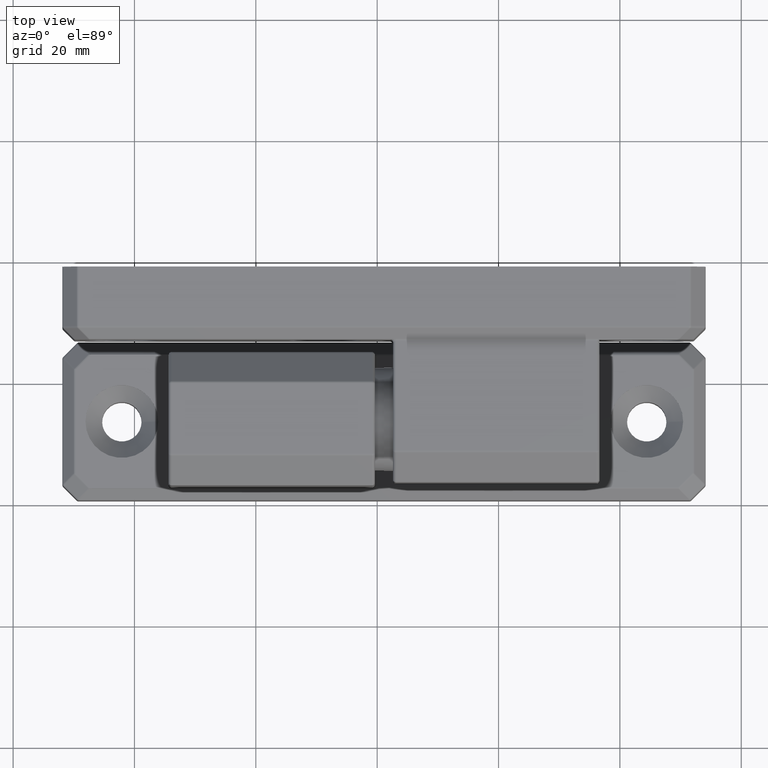
[diagram: clean part render]
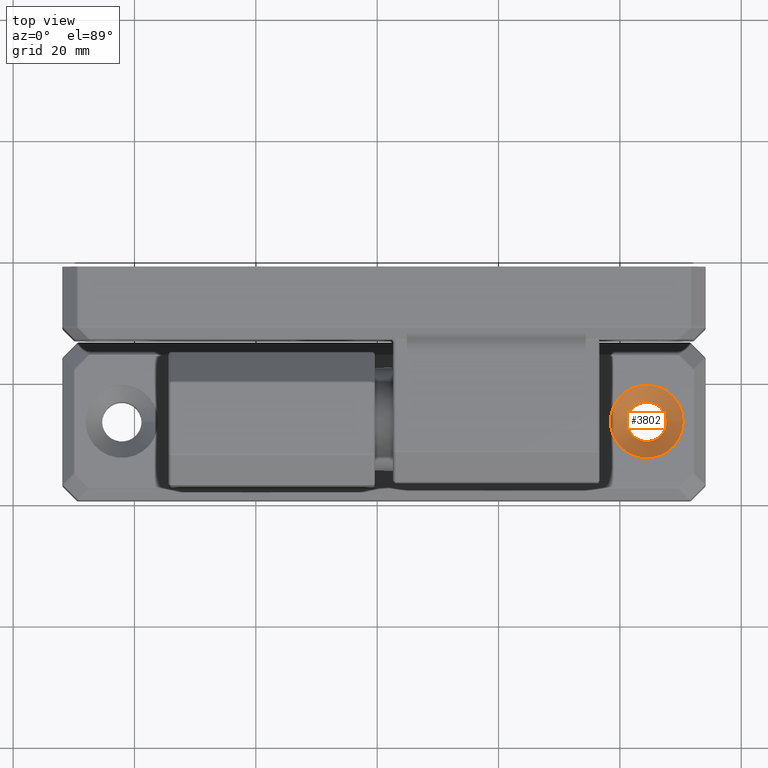
[diagram: same view with one face highlighted and labeled with its STEP entity id]
A machine part, top view. The second image highlights one B-rep face of the part: STEP entity #3802.
In plain terms, the highlighted conical surface has half-angle 45 deg.
Its self-contained STEP definition (entity closure, byte-faithful):
#35=CONICAL_SURFACE('',#4209,4.625,45.);
#59=FACE_BOUND('',#1229,.T.);
#941=FACE_OUTER_BOUND('',#1228,.T.);
#1228=EDGE_LOOP('',(#3048));
#1229=EDGE_LOOP('',(#3049));
#1536=CIRCLE('',#4210,6.);
#1537=CIRCLE('',#4211,3.25);
#1824=VERTEX_POINT('',#6529);
#1825=VERTEX_POINT('',#6531);
#2249=EDGE_CURVE('',#1824,#1824,#1536,.T.);
#2250=EDGE_CURVE('',#1825,#1825,#1537,.T.);
#3048=ORIENTED_EDGE('',*,*,#2249,.T.);
#3049=ORIENTED_EDGE('',*,*,#2250,.F.);
#3802=ADVANCED_FACE('',(#941,#59),#35,.F.);
#4209=AXIS2_PLACEMENT_3D('',#6528,#5133,#5134);
#4210=AXIS2_PLACEMENT_3D('',#6530,#5135,#5136);
#4211=AXIS2_PLACEMENT_3D('',#6532,#5137,#5138);
#5133=DIRECTION('center_axis',(0.,0.,1.));
#5134=DIRECTION('ref_axis',(1.,0.,0.));
#5135=DIRECTION('center_axis',(0.,0.,1.));
#5136=DIRECTION('ref_axis',(1.,0.,0.));
#5137=DIRECTION('center_axis',(0.,0.,1.));
#5138=DIRECTION('ref_axis',(1.,0.,0.));
#6528=CARTESIAN_POINT('Origin',(43.3,0.,10.125));
#6529=CARTESIAN_POINT('',(49.3,0.,11.5));
#6530=CARTESIAN_POINT('Origin',(43.3,0.,11.5));
#6531=CARTESIAN_POINT('',(46.55,0.,8.75));
#6532=CARTESIAN_POINT('Origin',(43.3,0.,8.75000000000003));